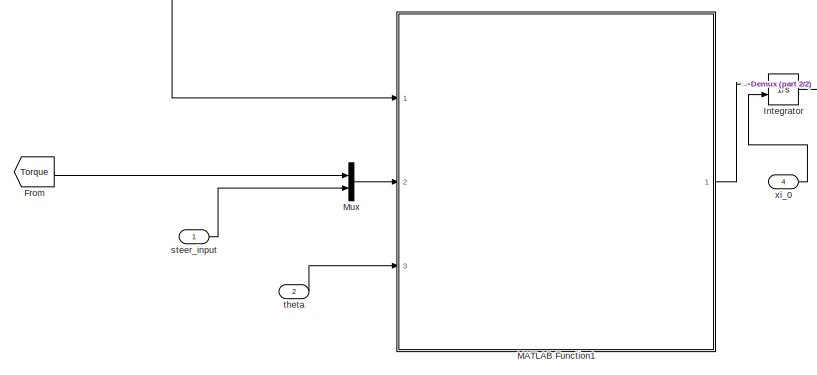
[diagram: root canvas - part 1/2, left side, full height]
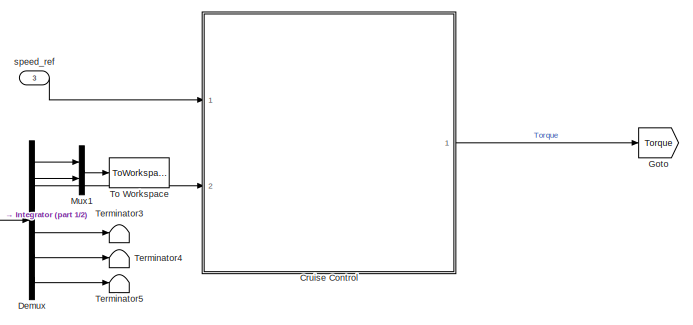
[diagram: root canvas - part 2/2, middle right region]
MODEL slx_bb64eddf552f
KIND model
CONFIG AbsTol = auto
CONFIG EnableMultiTasking = off
CONFIG FixedStep = 1e-4
CONFIG MaxStep = auto
CONFIG MinStep = auto
CONFIG RelTol = 1e-3
CONFIG SampleTimeConstraint = Unconstrained
CONFIG Solver = ode4
CONFIG SolverName = ode4
CONFIG StartTime = 0.0
CONFIG StopTime = 25
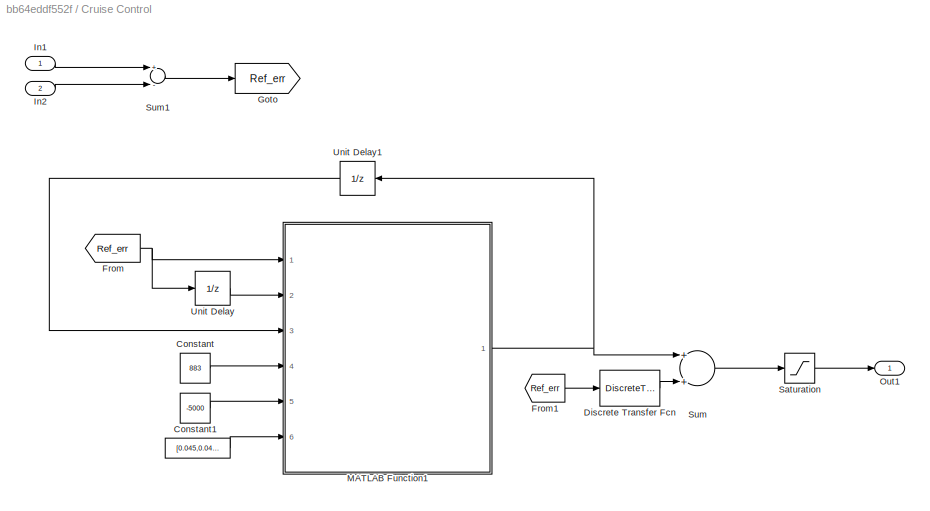
BLOCK [SubSystem] Cruise Control
  Ports = [2, 1]
  RequestExecContextInheritance = off
BLOCK [Constant] Cruise Control/  
  Value = [0.045,0.045]
BLOCK [Constant] Cruise Control/Constant
  Value = 883
BLOCK [Constant] Cruise Control/Constant1
  Value = -5000
BLOCK [DiscreteTransferFcn] Cruise Control/Discrete Transfer Fcn
  Denominator = [ 1,-0.99 ]
  InputPortMap = u0
  Numerator = [ 4.57,4.57 ]
  Ports = [1, 1]
BLOCK [From] Cruise Control/From
  GotoTag = Ref_err
BLOCK [From] Cruise Control/From1
  GotoTag = Ref_err
BLOCK [Goto] Cruise Control/Goto
  GotoTag = Ref_err
BLOCK [Inport] Cruise Control/In1
  IconDisplay = Port number
BLOCK [Inport] Cruise Control/In2
  IconDisplay = Port number
  Port = 2
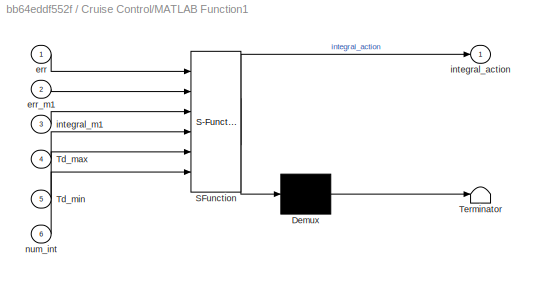
BLOCK [SubSystem] Cruise Control/MATLAB Function1
  ErrorFcn = Stateflow.Translate.translate
  PermitHierarchicalResolution = ExplicitOnly
  Ports = [6, 1]
  RequestExecContextInheritance = off
  SFBlockType = MATLAB Function
  TreatAsAtomicUnit = on
BLOCK [Demux] Cruise Control/MATLAB Function1/ Demux 
  Outputs = 1
  Ports = [1, 1]
BLOCK [S-Function] Cruise Control/MATLAB Function1/ SFunction 
  EnableBusSupport = on
  FunctionName = sf_sfun
  PortCounts = [6 2]
  Ports = [6, 2]
  SFcnIsStateOwnerBlock = off
  SFunctionDeploymentMode = off
  Tag = Stateflow S-Function trajectory_simulation 1
BLOCK [Terminator] Cruise Control/MATLAB Function1/ Terminator 
BLOCK [Inport] Cruise Control/MATLAB Function1/Td_max
  IconDisplay = Port number
  Port = 4
BLOCK [Inport] Cruise Control/MATLAB Function1/Td_min
  IconDisplay = Port number
  Port = 5
BLOCK [Inport] Cruise Control/MATLAB Function1/err
  IconDisplay = Port number
BLOCK [Inport] Cruise Control/MATLAB Function1/err_m1
  IconDisplay = Port number
  Port = 2
BLOCK [Outport] Cruise Control/MATLAB Function1/integral_action
  IconDisplay = Port number
BLOCK [Inport] Cruise Control/MATLAB Function1/integral_m1
  IconDisplay = Port number
  Port = 3
BLOCK [Inport] Cruise Control/MATLAB Function1/num_int
  IconDisplay = Port number
  Port = 6
BLOCK [Outport] Cruise Control/Out1
  IconDisplay = Port number
BLOCK [Saturate] Cruise Control/Saturation
  InputPortMap = u0
  LowerLimit = -5000
  Ports = [1, 1]
  UpperLimit = 883
BLOCK [Sum] Cruise Control/Sum
  InputSameDT = off
  OutDataTypeStr = Inherit: Inherit via internal rule
  Ports = [2, 1]
  SaturateOnIntegerOverflow = off
BLOCK [Sum] Cruise Control/Sum1
  InputSameDT = off
  Inputs = +-
  OutDataTypeStr = Inherit: Inherit via internal rule
  Ports = [2, 1]
  SaturateOnIntegerOverflow = off
BLOCK [UnitDelay] Cruise Control/Unit Delay
  InputProcessing = Elements as channels (sample based)
  SampleTime = -1
BLOCK [UnitDelay] Cruise Control/Unit Delay1
  InputProcessing = Elements as channels (sample based)
  SampleTime = -1
BLOCK [Demux] Demux
  DisplayOption = bar
  Outputs = 6
  Ports = [1, 6]
BLOCK [From] From
  GotoTag = Torque
BLOCK [Goto] Goto
  GotoTag = Torque
BLOCK [Integrator] Integrator
  InitialCondition = xi_0
  InitialConditionSource = external
  Ports = [2, 1]
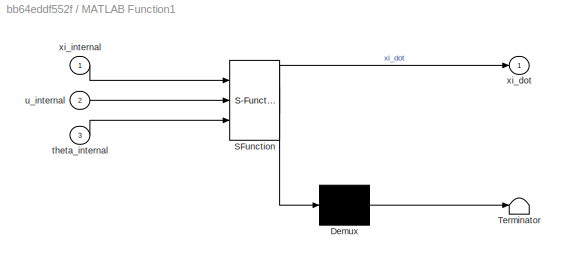
BLOCK [SubSystem] MATLAB Function1
  ErrorFcn = Stateflow.Translate.translate
  PermitHierarchicalResolution = ExplicitOnly
  Ports = [3, 1]
  RequestExecContextInheritance = off
  SFBlockType = MATLAB Function
  TreatAsAtomicUnit = on
BLOCK [Demux] MATLAB Function1/ Demux 
  Outputs = 1
  Ports = [1, 1]
BLOCK [S-Function] MATLAB Function1/ SFunction 
  EnableBusSupport = on
  FunctionName = sf_sfun
  PortCounts = [3 2]
  Ports = [3, 2]
  SFcnIsStateOwnerBlock = off
  SFunctionDeploymentMode = off
  Tag = Stateflow S-Function trajectory_simulation 3
BLOCK [Terminator] MATLAB Function1/ Terminator 
BLOCK [Inport] MATLAB Function1/theta_internal
  IconDisplay = Port number
  Port = 3
BLOCK [Inport] MATLAB Function1/u_internal
  IconDisplay = Port number
  Port = 2
BLOCK [Outport] MATLAB Function1/xi_dot
  IconDisplay = Port number
BLOCK [Inport] MATLAB Function1/xi_internal
  IconDisplay = Port number
BLOCK [Mux] Mux
  DisplayOption = bar
  Inputs = 2
  Ports = [2, 1]
BLOCK [Mux] Mux1
  DisplayOption = bar
  Inputs = 2
  Ports = [2, 1]
BLOCK [Terminator] Terminator3
BLOCK [Terminator] Terminator4
BLOCK [Terminator] Terminator5
BLOCK [ToWorkspace] To Workspace
  FixptAsFi = on
  MaxDataPoints = inf
  Ports = [1]
  SampleTime = -1
  Save2DSignal = 3-D array (concatenate along third dimension)
  SaveFormat = Structure With Time
  VariableName = traj
BLOCK [Inport] speed_ref
  IconDisplay = Port number
  OutDataTypeStr = double
  Port = 3
  PortDimensions = 1
BLOCK [Inport] steer_input
  IconDisplay = Port number
  OutDataTypeStr = double
  PortDimensions = 1
BLOCK [Inport] theta
  IconDisplay = Port number
  OutDataTypeStr = double
  Port = 2
  PortDimensions = 13
BLOCK [Inport] xi_0
  IconDisplay = Port number
  OutDataTypeStr = double
  Port = 4
  PortDimensions = 6
LINE Cruise Control/  :1 -> Cruise Control/MATLAB Function1:6
LINE Cruise Control/Constant1:1 -> Cruise Control/MATLAB Function1:5
LINE Cruise Control/Constant:1 -> Cruise Control/MATLAB Function1:4
LINE Cruise Control/Discrete Transfer Fcn:1 -> Cruise Control/Sum:2
LINE Cruise Control/From1:1 -> Cruise Control/Discrete Transfer Fcn:1
NET Cruise Control/From:1 -> Cruise Control/MATLAB Function1:1, Cruise Control/Unit Delay:1
LINE Cruise Control/In1:1 -> Cruise Control/Sum1:1
LINE Cruise Control/In2:1 -> Cruise Control/Sum1:2
NET Cruise Control/MATLAB Function1:1 -> Cruise Control/Sum:1, Cruise Control/Unit Delay1:1
LINE Cruise Control/Saturation:1 -> Cruise Control/Out1:1
LINE Cruise Control/Sum1:1 -> Cruise Control/Goto:1
LINE Cruise Control/Sum:1 -> Cruise Control/Saturation:1
LINE Cruise Control/Unit Delay1:1 -> Cruise Control/MATLAB Function1:3
LINE Cruise Control/Unit Delay:1 -> Cruise Control/MATLAB Function1:2
LINE Cruise Control:1 -> Goto:1
LINE Demux:1 -> Mux1:1
LINE Demux:2 -> Mux1:2
LINE Demux:3 -> Cruise Control:2
LINE Demux:4 -> Terminator3:1
LINE Demux:5 -> Terminator4:1
LINE Demux:6 -> Terminator5:1
LINE From:1 -> Mux:1
NET Integrator:1 -> Demux:1, MATLAB Function1:1
LINE MATLAB Function1:1 -> Integrator:1
LINE Mux1:1 -> To Workspace:1
LINE Mux:1 -> MATLAB Function1:2
LINE speed_ref:1 -> Cruise Control:1
LINE steer_input:1 -> Mux:2
LINE theta:1 -> MATLAB Function1:3
LINE xi_0:1 -> Integrator:2
note: NET lines group one-source signal fan-out (src -> all destinations, sorted); 1:1 wires keep LINE
CHART Cruise Control/MATLAB Function1 states=1 transitions=1
  STATE_LABEL 'eML_blk_kernel()'
  STATE_LABEL "SCRIPT:\nfunction integral_action = integrator_anti_wu(err, err_m1, integral_m1, Td_max, Td_min, num_int)\n\nintegral_action = min(Td_max, max(Td_min, integral_m1+num_int'*[err;err_m1]));\n\n"
CHART MATLAB Function1 states=1 transitions=1
  STATE_LABEL 'eML_blk_kernel()'
  STATE_LABEL 'SCRIPT:\nfunction xi_dot = vehicle(xi_internal, u_internal, theta_internal)\n% simulation, time has to be the fist input\n\n%% Read states\nX = xi_internal(1,1);\nY = xi_internal(2,1);\nUx = xi_internal(3,1);\nbeta = xi_internal(4,1);\npsi = xi_internal(5,1);\nr = xi_internal(6,1);\n\n%% Read Inputs\n\nTd_internal = u_internal(1,1);\ndelta_internal = u_internal(2,1);\n\n%% Read Parameters\n\nm = theta_internal(1,1);...<+1380ch>'
